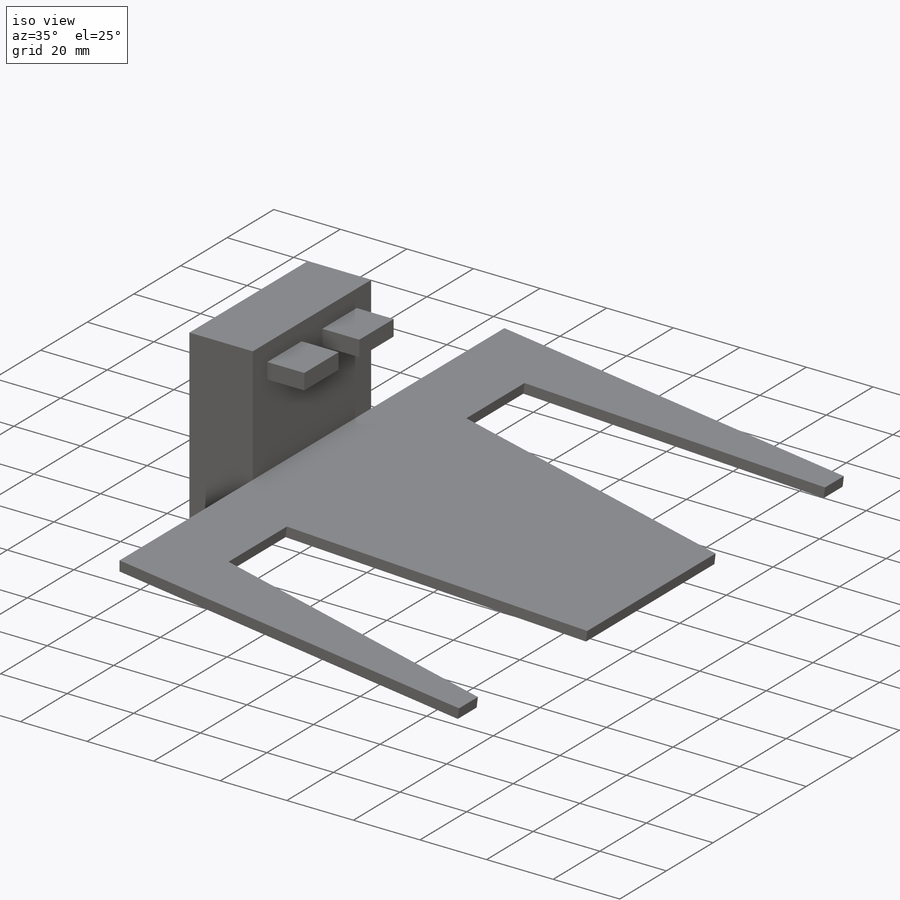
[diagram: iso view]
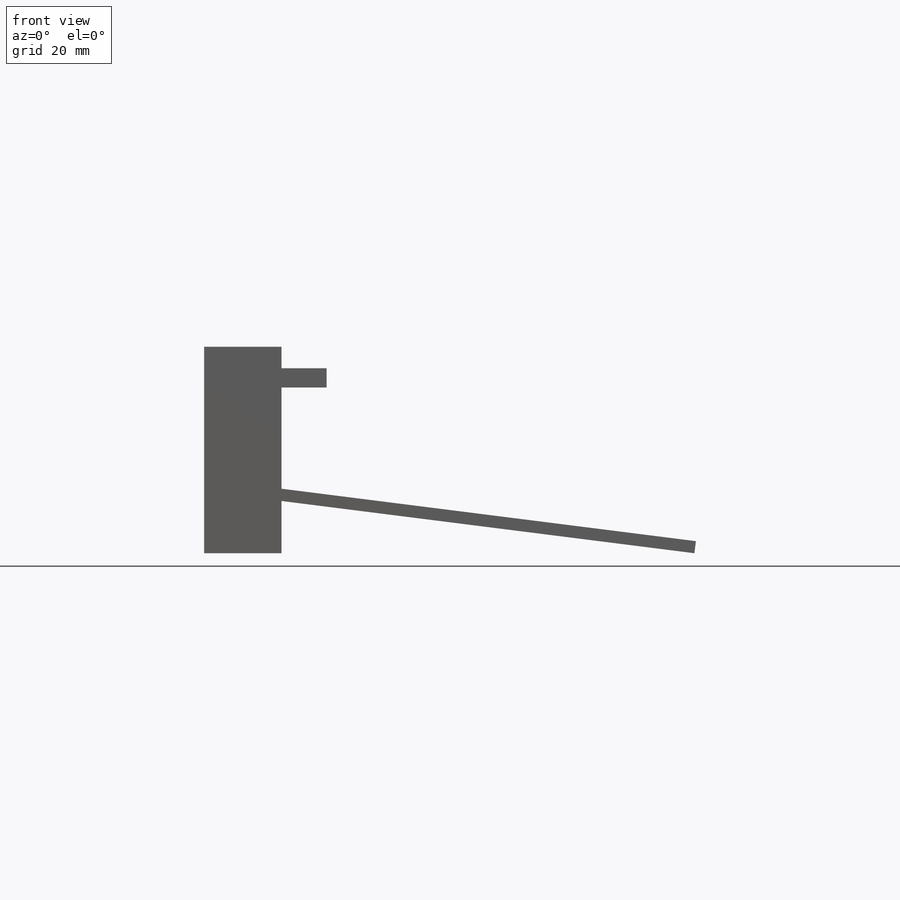
[diagram: front view]
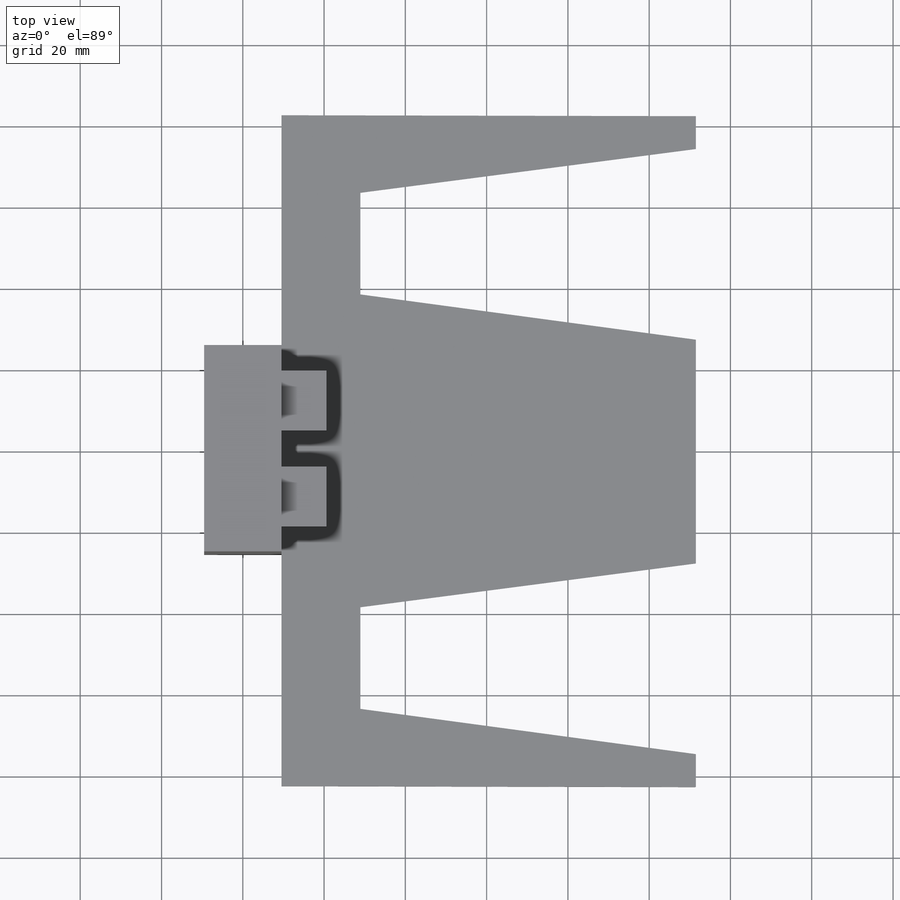
[diagram: top view]
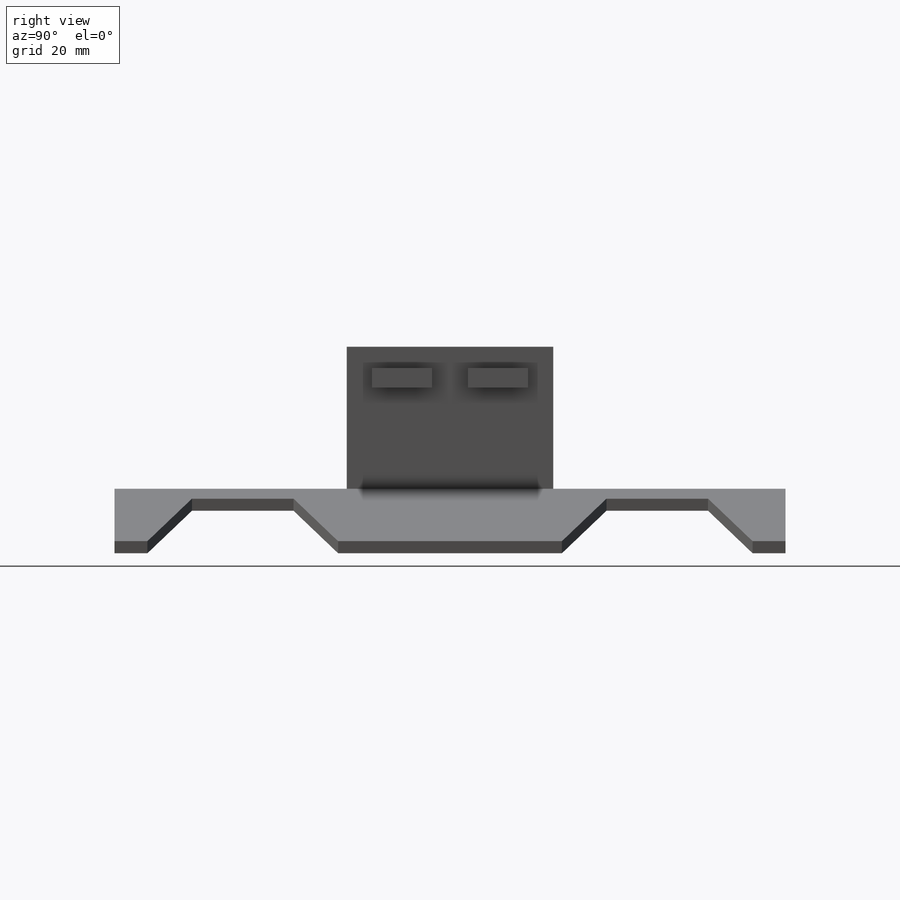
[diagram: right view]
SOLIDWORKS PART (.sldprt)
format: sldprt  version: not decoded by parser v0  size: 258,560 bytes
history: native  units: mm
features: sketch x5, extrude x3, cut_extrude x2, material x1, shell x1, plane x1, mirror x1 (+14 scaffold rows collapsed)
feature tree (28):
  scaffold x14  (default folders/planes/origin — collapsed)
  material  "6061 Alloy"
  sketch  "Sketch1"  dims[D3=12.7mm D4=2.54mm D1=50.8mm D2=19.05mm]
  extrude  "Extrude1"  Depth=50.8mm
  shell  "Shell1"  Thickness=1.5875mm
  sketch  "Sketch3"  dims[c1.D1=88.9mm c1.D2=15.875mm c2.D1=101.6mm c2.D3=2.9972mm]
  extrude  "Extrude3"  Depth=165.1mm
  plane  "Plane1"  Offset=63.5mm
  sketch  "Sketch4"  dims[c1.D2=42.0mm c1.D1=42.0mm c1.D3=42.0mm c2.D1=23.0mm c2.D3=38.1mm c3.D1=23.0mm]
  cut_extrude  "Extrude4"  Depth=25mm
  mirror  "Mirror1"
  sketch  "Sketch5"  dims[D1=14.732mm D2=8.89mm D3=4.7625mm D4=~37.791752mm]
  extrude  "Extrude5"  Depth=11.1125mm
  sketch  "Sketch9"  dims[c1.D1=~83.221317mm c2.D1=7.5deg c2.D2=~34.673316mm c3.D2=7.5deg]
  cut_extrude  "Extrude10"  [1 undecoded]
decode coverage: 10 of 12 modeling features carry decoded parameters
note: ~ marks probable driven/reference dimensions
note: 1 parameter value undecoded
note: suppression state not decoded; provenance and decode notes live in map.json
